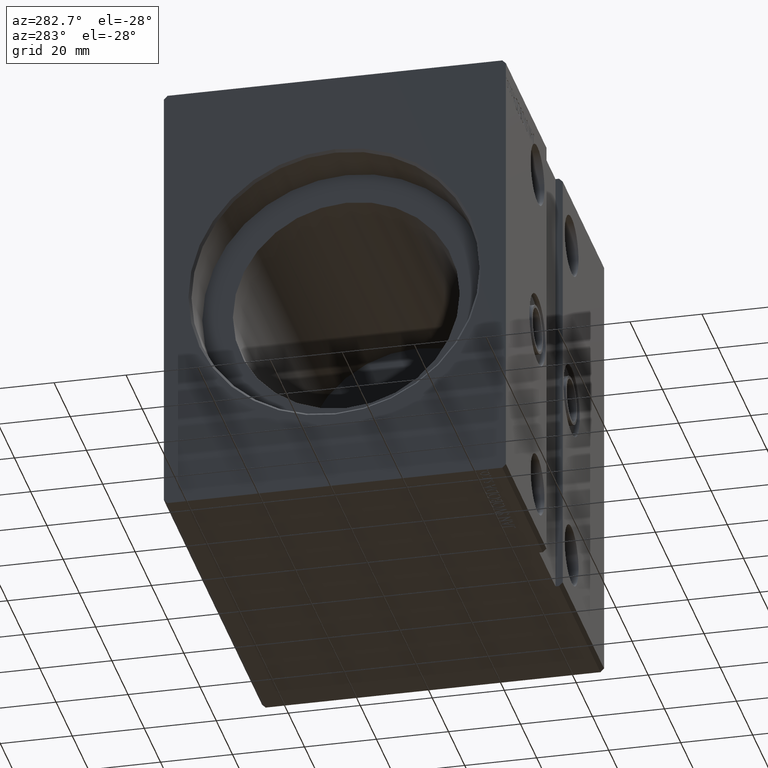
[diagram: clean part render]
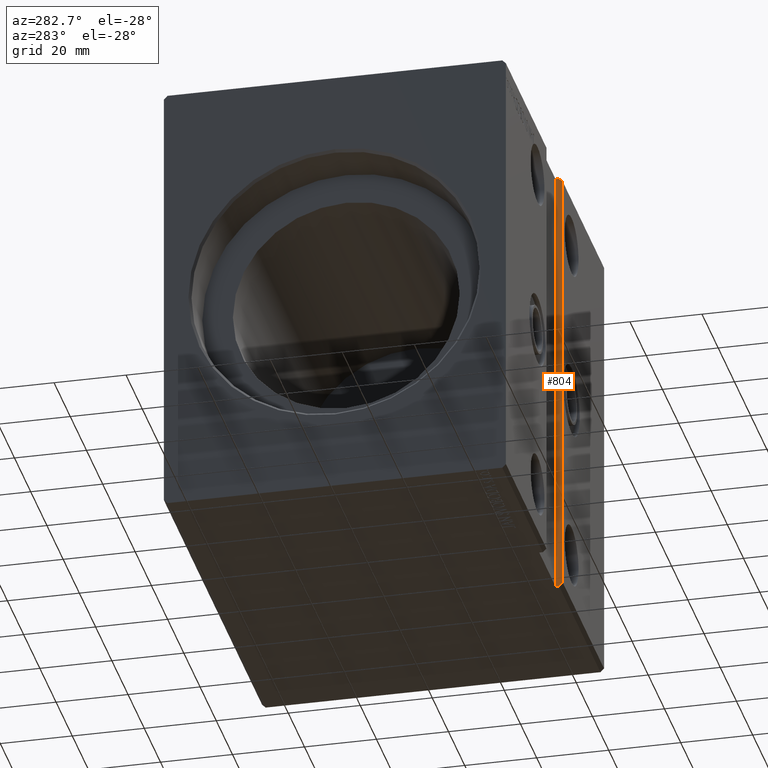
[diagram: same view with one face highlighted and labeled with its STEP entity id]
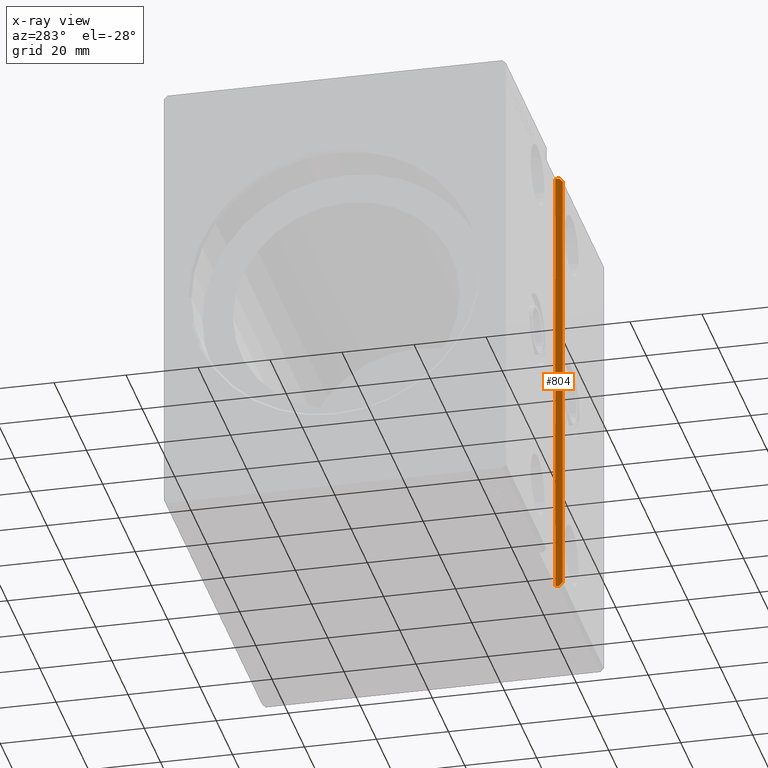
[diagram: x-ray of the same camera — body ghosted, the highlighted face saturated]
A machine part, auxiliary view. The second image highlights one B-rep face of the part: STEP entity #804.
The next image is the same camera in x-ray: the body ghosted, the highlighted face saturated — about 0% of this face is hidden behind the body in this view.
In plain terms, the highlighted planar face has unit normal (1, -0, 0).
Its self-contained STEP definition (entity closure, byte-faithful):
#480 = CARTESIAN_POINT ( 'NONE',  ( 70.00000000000000000, -45.50000000000000711, 62.49999999999997868 ) ) ;
#569 = ORIENTED_EDGE ( 'NONE', *, *, #17020, .T. ) ;
#804 = ADVANCED_FACE ( 'NONE', ( #20720 ), #33675, .F. ) ;
#1046 = VERTEX_POINT ( 'NONE', #30456 ) ;
#2195 = DIRECTION ( 'NONE',  ( 7.850462293418874601E-17, -0.7071067811865474617, -0.7071067811865474617 ) ) ;
#3837 = VECTOR ( 'NONE', #6950, 1000.000000000000000 ) ;
#4866 = DIRECTION ( 'NONE',  ( -0.000000000000000000, -1.000000000000000000, -5.507058653894625237E-17 ) ) ;
#5293 = CARTESIAN_POINT ( 'NONE',  ( 70.00000000000001421, -45.50000000000000711, -62.50000000000002842 ) ) ;
#6950 = DIRECTION ( 'NONE',  ( -1.110223024625156540E-16, -0.000000000000000000, 1.000000000000000000 ) ) ;
#7370 = VERTEX_POINT ( 'NONE', #38936 ) ;
#8079 = LINE ( 'NONE', #23557, #39792 ) ;
#10247 = LINE ( 'NONE', #23164, #25720 ) ;
#11209 = DIRECTION ( 'NONE',  ( 1.000000000000000000, -6.114063315515033944E-33, 1.110223024625156540E-16 ) ) ;
#11760 = EDGE_CURVE ( 'NONE', #1046, #30069, #23754, .T. ) ;
#12864 = VERTEX_POINT ( 'NONE', #41869 ) ;
#13072 = ORIENTED_EDGE ( 'NONE', *, *, #23159, .F. ) ;
#13362 = CARTESIAN_POINT ( 'NONE',  ( 70.00000000000000000, -46.50000000000001421, 62.49999999999997868 ) ) ;
#14104 = ORIENTED_EDGE ( 'NONE', *, *, #11760, .F. ) ;
#14669 = EDGE_CURVE ( 'NONE', #34259, #12864, #22137, .T. ) ;
#14924 = EDGE_CURVE ( 'NONE', #7370, #30069, #33939, .T. ) ;
#15160 = CARTESIAN_POINT ( 'NONE',  ( 70.00000000000000000, -46.50000000000001421, 62.49999999999997868 ) ) ;
#16584 = VERTEX_POINT ( 'NONE', #480 ) ;
#17020 = EDGE_CURVE ( 'NONE', #1046, #12864, #8079, .T. ) ;
#17999 = ORIENTED_EDGE ( 'NONE', *, *, #14669, .F. ) ;
#20018 = VECTOR ( 'NONE', #4866, 1000.000000000000000 ) ;
#20720 = FACE_OUTER_BOUND ( 'NONE', #23231, .T. ) ;
#22083 = VECTOR ( 'NONE', #2195, 1000.000000000000114 ) ;
#22137 = LINE ( 'NONE', #15160, #22083 ) ;
#23159 = EDGE_CURVE ( 'NONE', #7370, #16584, #26666, .T. ) ;
#23164 = CARTESIAN_POINT ( 'NONE',  ( 70.00000000000000000, -45.50000000000000711, 62.49999999999997868 ) ) ;
#23231 = EDGE_LOOP ( 'NONE', ( #41215, #13072, #40857, #14104, #569, #17999 ) ) ;
#23557 = CARTESIAN_POINT ( 'NONE',  ( 70.00000000000000000, -47.50000000000000711, 62.49999999999997868 ) ) ;
#23754 = LINE ( 'NONE', #30757, #38562 ) ;
#24120 = DIRECTION ( 'NONE',  ( 1.110223024625156540E-16, 0.000000000000000000, -1.000000000000000000 ) ) ;
#25720 = VECTOR ( 'NONE', #30156, 1000.000000000000000 ) ;
#26666 = LINE ( 'NONE', #33449, #3837 ) ;
#26946 = DIRECTION ( 'NONE',  ( 7.850462293418902951E-17, 0.7071067811865451302, -0.7071067811865500152 ) ) ;
#30069 = VERTEX_POINT ( 'NONE', #41961 ) ;
#30156 = DIRECTION ( 'NONE',  ( -0.000000000000000000, -1.000000000000000000, -5.507058653894625237E-17 ) ) ;
#30351 = DIRECTION ( 'NONE',  ( -1.110223024625156540E-16, -0.000000000000000000, 1.000000000000000000 ) ) ;
#30456 = CARTESIAN_POINT ( 'NONE',  ( 70.00000000000001421, -47.50000000000000711, -61.50000000000002132 ) ) ;
#30757 = CARTESIAN_POINT ( 'NONE',  ( 70.00000000000001421, -47.49999999999999289, -61.50000000000001421 ) ) ;
#32971 = EDGE_CURVE ( 'NONE', #16584, #34259, #10247, .T. ) ;
#33449 = CARTESIAN_POINT ( 'NONE',  ( 70.00000000000000000, -45.50000000000000711, 62.49999999999997868 ) ) ;
#33675 = PLANE ( 'NONE',  #38988 ) ;
#33939 = LINE ( 'NONE', #5293, #20018 ) ;
#34259 = VERTEX_POINT ( 'NONE', #13362 ) ;
#38562 = VECTOR ( 'NONE', #26946, 1000.000000000000114 ) ;
#38936 = CARTESIAN_POINT ( 'NONE',  ( 70.00000000000001421, -45.50000000000000711, -62.50000000000002842 ) ) ;
#38988 = AXIS2_PLACEMENT_3D ( 'NONE', #40310, #11209, #24120 ) ;
#39792 = VECTOR ( 'NONE', #30351, 1000.000000000000000 ) ;
#40310 = CARTESIAN_POINT ( 'NONE',  ( 70.00000000000000000, -45.50000000000000711, 62.49999999999997868 ) ) ;
#40857 = ORIENTED_EDGE ( 'NONE', *, *, #14924, .T. ) ;
#41215 = ORIENTED_EDGE ( 'NONE', *, *, #32971, .F. ) ;
#41869 = CARTESIAN_POINT ( 'NONE',  ( 70.00000000000000000, -47.50000000000000711, 61.49999999999998579 ) ) ;
#41961 = CARTESIAN_POINT ( 'NONE',  ( 70.00000000000001421, -46.49999999999998579, -62.50000000000002842 ) ) ;